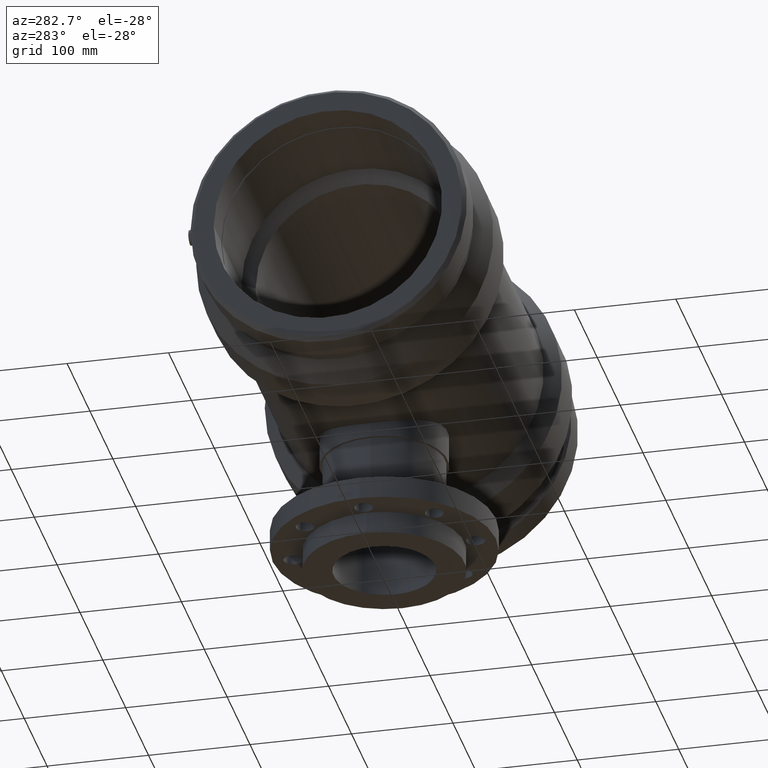
[diagram: clean part render]
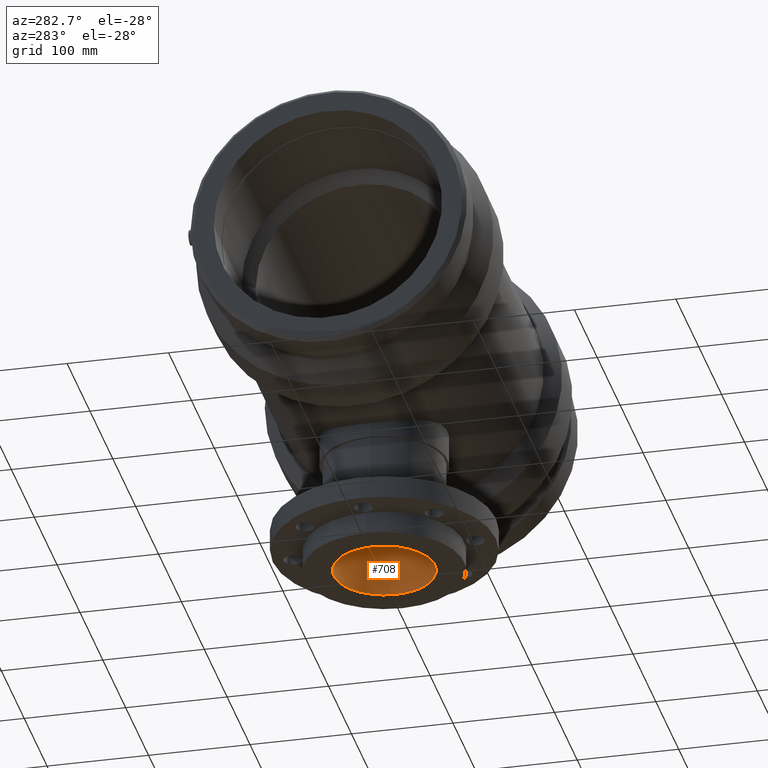
[diagram: same view with one face highlighted and labeled with its STEP entity id]
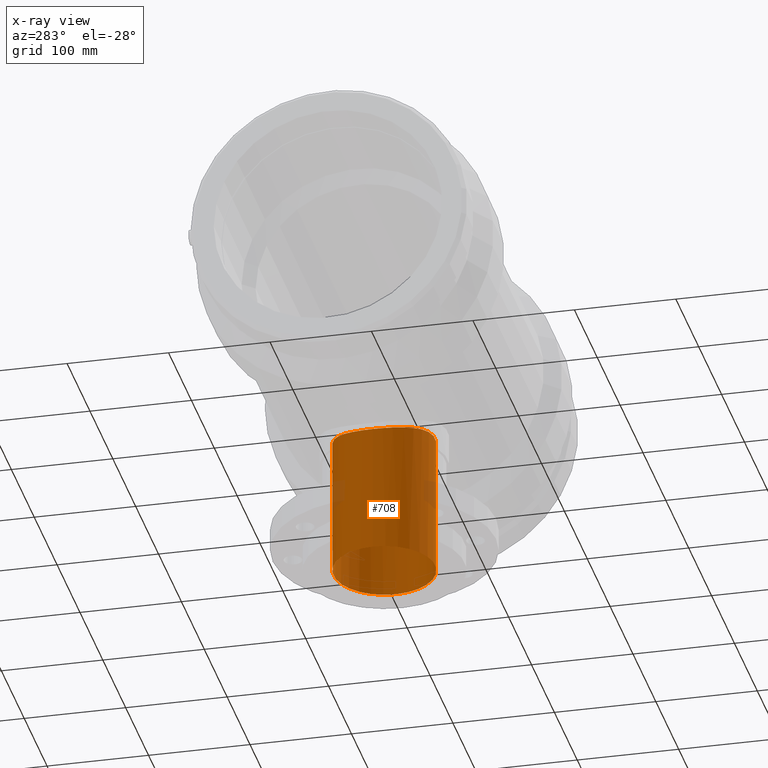
[diagram: x-ray of the same camera — body ghosted, the highlighted face saturated]
A machine part, auxiliary view. The second image highlights one B-rep face of the part: STEP entity #708.
The next image is the same camera in x-ray: the body ghosted, the highlighted face saturated — about 4% of this face is hidden behind the body in this view.
In plain terms, the highlighted cylindrical surface (bore or boss wall) has radius 50 mm, axis along (-0, 0, -1).
Its self-contained STEP definition (entity closure, byte-faithful):
#52=FACE_BOUND('',#293,.T.);
#137=CIRCLE('',#786,50.);
#193=CYLINDRICAL_SURFACE('',#785,50.);
#224=FACE_OUTER_BOUND('',#292,.T.);
#292=EDGE_LOOP('',(#578));
#293=EDGE_LOOP('',(#579));
#414=B_SPLINE_CURVE_WITH_KNOTS('',3,(#1267,#1268,#1269,#1270,#1271,#1272,
#1273,#1274,#1275,#1276,#1277,#1278,#1279,#1280,#1281,#1282,#1283,#1284,
#1285,#1286,#1287,#1288,#1289,#1290,#1291,#1292,#1293,#1294,#1295,#1296,
#1297,#1298,#1299,#1300,#1301,#1302,#1303,#1304,#1305,#1306,#1307,#1308,
#1309,#1310,#1311,#1312,#1313,#1314,#1315,#1316,#1317,#1318,#1319,#1320,
#1321,#1322,#1323,#1324,#1325,#1326,#1327,#1328,#1329,#1330,#1331,#1332,
#1333,#1334,#1335,#1336,#1337,#1338,#1339,#1340,#1341,#1342,#1343,#1344,
#1345,#1346,#1347,#1348,#1349,#1350,#1351,#1352,#1353,#1354,#1355,#1356,
#1357,#1358,#1359,#1360,#1361,#1362,#1363),.UNSPECIFIED.,.T.,.F.,(4,3,3,
3,3,3,3,3,3,3,3,3,3,3,3,3,3,3,3,3,3,3,3,3,3,3,3,3,3,3,3,3,4),(0.,0.95251709875408,
1.90503419750816,2.85755129626224,3.81006839501632,4.76182017603819,5.71357195706005,
6.66532373808192,7.61707551910378,8.56882730012565,9.52057908114751,10.4723308621694,
11.4240826431912,12.3765997419453,13.3291168406994,14.2816339394535,15.2341510382076,
16.1866681369617,17.1391852357157,18.0917023344698,19.0442194332239,19.9959712142458,
20.9477229952676,21.8994747762895,22.8512265573114,23.8029783383332,24.7547301193551,
25.706481900377,26.6582336813988,27.6107507801529,28.563267878907,29.5157849776611,
30.4683020764151),.UNSPECIFIED.);
#419=VERTEX_POINT('',#1266);
#437=VERTEX_POINT('',#1445);
#488=EDGE_CURVE('',#419,#419,#414,.T.);
#507=EDGE_CURVE('',#437,#437,#137,.T.);
#578=ORIENTED_EDGE('',*,*,#507,.T.);
#579=ORIENTED_EDGE('',*,*,#488,.F.);
#708=ADVANCED_FACE('',(#224,#52),#193,.F.);
#785=AXIS2_PLACEMENT_3D('',#1444,#935,#936);
#786=AXIS2_PLACEMENT_3D('',#1446,#937,#938);
#935=DIRECTION('center_axis',(-1.22464679914735E-16,0.,-1.));
#936=DIRECTION('ref_axis',(-1.,0.,0.));
#937=DIRECTION('center_axis',(-1.22464679914735E-16,0.,-1.));
#938=DIRECTION('ref_axis',(1.,0.,-1.22464679914735E-16));
#1266=CARTESIAN_POINT('',(-1.38777878078145E-14,50.,-122.001731545089));
#1267=CARTESIAN_POINT('Ctrl Pts',(-1.4432899320127E-14,50.,-122.001731545089));
#1268=CARTESIAN_POINT('Ctrl Pts',(3.17505699584692,50.,-122.001731545089));
#1269=CARTESIAN_POINT('Ctrl Pts',(6.44691543442162,49.6927181165178,-122.129163967763));
#1270=CARTESIAN_POINT('Ctrl Pts',(9.69013407718668,49.0520264776711,-122.385951801805));
#1271=CARTESIAN_POINT('Ctrl Pts',(12.9333527199517,48.4113348388244,-122.642739635848));
#1272=CARTESIAN_POINT('Ctrl Pts',(16.1480579027653,47.4376363748977,-123.028293102024));
#1273=CARTESIAN_POINT('Ctrl Pts',(19.2221926332275,46.157418801007,-123.506741474418));
#1274=CARTESIAN_POINT('Ctrl Pts',(22.2963273636898,44.8772012271162,-123.985189846813));
#1275=CARTESIAN_POINT('Ctrl Pts',(25.2353937388541,43.2884344589753,-124.556207896686));
#1276=CARTESIAN_POINT('Ctrl Pts',(27.9494274381145,41.458768745364,-125.162266654605));
#1277=CARTESIAN_POINT('Ctrl Pts',(30.6634611373748,39.6291030317528,-125.768325412524));
#1278=CARTESIAN_POINT('Ctrl Pts',(33.152495195,37.5581829236547,-126.408203299112));
#1279=CARTESIAN_POINT('Ctrl Pts',(35.3553390593273,35.3553390593274,-127.021346631186));
#1280=CARTESIAN_POINT('Ctrl Pts',(37.5564130074265,33.1542651112282,-127.633997321748));
#1281=CARTESIAN_POINT('Ctrl Pts',(39.6271114773203,30.6660773106576,-128.264289976873));
#1282=CARTESIAN_POINT('Ctrl Pts',(41.4571563197367,27.9518190799975,-128.853088089184));
#1283=CARTESIAN_POINT('Ctrl Pts',(43.2872011621532,25.2375608493373,-129.441886201496));
#1284=CARTESIAN_POINT('Ctrl Pts',(44.8768716490696,22.2971967352341,-129.988158086335));
#1285=CARTESIAN_POINT('Ctrl Pts',(46.1576010451734,19.2217550123451,-130.441353236791));
#1286=CARTESIAN_POINT('Ctrl Pts',(47.4383304412771,16.1463132894562,-130.894548387248));
#1287=CARTESIAN_POINT('Ctrl Pts',(48.4121539134414,12.9303299289489,-131.254736994205));
#1288=CARTESIAN_POINT('Ctrl Pts',(49.0526648466482,9.68690205599323,-131.493674481161));
#1289=CARTESIAN_POINT('Ctrl Pts',(49.6931757798549,6.4434741830376,-131.732611968118));
#1290=CARTESIAN_POINT('Ctrl Pts',(50.,3.17250593673956,-131.85));
#1291=CARTESIAN_POINT('Ctrl Pts',(50.,6.93889390390723E-15,-131.85));
#1292=CARTESIAN_POINT('Ctrl Pts',(50.,-3.17250593673954,-131.85));
#1293=CARTESIAN_POINT('Ctrl Pts',(49.6931757798549,-6.44347418303759,-131.732611968118));
#1294=CARTESIAN_POINT('Ctrl Pts',(49.0526648466482,-9.68690205599322,-131.493674481161));
#1295=CARTESIAN_POINT('Ctrl Pts',(48.4121539134414,-12.9303299289488,-131.254736994205));
#1296=CARTESIAN_POINT('Ctrl Pts',(47.4383304412771,-16.1463132894562,-130.894548387248));
#1297=CARTESIAN_POINT('Ctrl Pts',(46.1576010451734,-19.2217550123451,-130.441353236791));
#1298=CARTESIAN_POINT('Ctrl Pts',(44.8768716490697,-22.2971967352341,-129.988158086335));
#1299=CARTESIAN_POINT('Ctrl Pts',(43.2872011621532,-25.2375608493373,-129.441886201496));
#1300=CARTESIAN_POINT('Ctrl Pts',(41.4571563197367,-27.9518190799975,-128.853088089184));
#1301=CARTESIAN_POINT('Ctrl Pts',(39.6271114773203,-30.6660773106576,-128.264289976873));
#1302=CARTESIAN_POINT('Ctrl Pts',(37.5564130074265,-33.1542651112282,-127.633997321748));
#1303=CARTESIAN_POINT('Ctrl Pts',(35.3553390593274,-35.3553390593274,-127.021346631186));
#1304=CARTESIAN_POINT('Ctrl Pts',(33.1524951950001,-37.5581829236547,-126.408203299112));
#1305=CARTESIAN_POINT('Ctrl Pts',(30.6634611373748,-39.6291030317528,-125.768325412524));
#1306=CARTESIAN_POINT('Ctrl Pts',(27.9494274381144,-41.458768745364,-125.162266654605));
#1307=CARTESIAN_POINT('Ctrl Pts',(25.2353937388541,-43.2884344589753,-124.556207896686));
#1308=CARTESIAN_POINT('Ctrl Pts',(22.2963273636898,-44.8772012271162,-123.985189846813));
#1309=CARTESIAN_POINT('Ctrl Pts',(19.2221926332275,-46.157418801007,-123.506741474418));
#1310=CARTESIAN_POINT('Ctrl Pts',(16.1480579027653,-47.4376363748977,-123.028293102024));
#1311=CARTESIAN_POINT('Ctrl Pts',(12.9333527199517,-48.4113348388244,-122.642739635848));
#1312=CARTESIAN_POINT('Ctrl Pts',(9.69013407718668,-49.0520264776711,-122.385951801805));
#1313=CARTESIAN_POINT('Ctrl Pts',(6.44691543442162,-49.6927181165178,-122.129163967763));
#1314=CARTESIAN_POINT('Ctrl Pts',(3.17505699584691,-50.,-122.001731545089));
#1315=CARTESIAN_POINT('Ctrl Pts',(-1.50267886680737E-14,-50.,-122.001731545089));
#1316=CARTESIAN_POINT('Ctrl Pts',(-3.17505699584698,-50.,-122.001731545089));
#1317=CARTESIAN_POINT('Ctrl Pts',(-6.44691543442167,-49.6927181165178,-122.129163967763));
#1318=CARTESIAN_POINT('Ctrl Pts',(-9.69013407718673,-49.0520264776711,-122.385951801805));
#1319=CARTESIAN_POINT('Ctrl Pts',(-12.9333527199518,-48.4113348388244,-122.642739635848));
#1320=CARTESIAN_POINT('Ctrl Pts',(-16.1480579027654,-47.4376363748977,-123.028293102024));
#1321=CARTESIAN_POINT('Ctrl Pts',(-19.2221926332276,-46.157418801007,-123.506741474418));
#1322=CARTESIAN_POINT('Ctrl Pts',(-22.2963273636898,-44.8772012271162,-123.985189846813));
#1323=CARTESIAN_POINT('Ctrl Pts',(-25.2353937388541,-43.2884344589753,-124.556207896686));
#1324=CARTESIAN_POINT('Ctrl Pts',(-27.9494274381145,-41.458768745364,-125.162266654605));
#1325=CARTESIAN_POINT('Ctrl Pts',(-30.6634611373748,-39.6291030317528,-125.768325412524));
#1326=CARTESIAN_POINT('Ctrl Pts',(-33.1524951950001,-37.5581829236547,-126.408203299112));
#1327=CARTESIAN_POINT('Ctrl Pts',(-35.3553390593274,-35.3553390593274,-127.021346631186));
#1328=CARTESIAN_POINT('Ctrl Pts',(-37.5564130074265,-33.1542651112282,-127.633997321748));
#1329=CARTESIAN_POINT('Ctrl Pts',(-39.6271114773203,-30.6660773106576,-128.264289976873));
#1330=CARTESIAN_POINT('Ctrl Pts',(-41.4571563197368,-27.9518190799975,-128.853088089184));
#1331=CARTESIAN_POINT('Ctrl Pts',(-43.2872011621532,-25.2375608493373,-129.441886201496));
#1332=CARTESIAN_POINT('Ctrl Pts',(-44.8768716490697,-22.2971967352341,-129.988158086335));
#1333=CARTESIAN_POINT('Ctrl Pts',(-46.1576010451734,-19.2217550123451,-130.441353236791));
#1334=CARTESIAN_POINT('Ctrl Pts',(-47.4383304412772,-16.1463132894562,-130.894548387248));
#1335=CARTESIAN_POINT('Ctrl Pts',(-48.4121539134414,-12.9303299289489,-131.254736994205));
#1336=CARTESIAN_POINT('Ctrl Pts',(-49.0526648466482,-9.68690205599324,-131.493674481161));
#1337=CARTESIAN_POINT('Ctrl Pts',(-49.693175779855,-6.44347418303761,-131.732611968118));
#1338=CARTESIAN_POINT('Ctrl Pts',(-50.,-3.17250593673955,-131.85));
#1339=CARTESIAN_POINT('Ctrl Pts',(-50.,-1.36002320516582E-14,-131.85));
#1340=CARTESIAN_POINT('Ctrl Pts',(-50.,3.17250593673953,-131.85));
#1341=CARTESIAN_POINT('Ctrl Pts',(-49.6931757798549,6.44347418303758,-131.732611968118));
#1342=CARTESIAN_POINT('Ctrl Pts',(-49.0526648466482,9.68690205599321,-131.493674481161));
#1343=CARTESIAN_POINT('Ctrl Pts',(-48.4121539134415,12.9303299289488,-131.254736994205));
#1344=CARTESIAN_POINT('Ctrl Pts',(-47.4383304412772,16.1463132894561,-130.894548387248));
#1345=CARTESIAN_POINT('Ctrl Pts',(-46.1576010451734,19.2217550123451,-130.441353236791));
#1346=CARTESIAN_POINT('Ctrl Pts',(-44.8768716490697,22.2971967352341,-129.988158086335));
#1347=CARTESIAN_POINT('Ctrl Pts',(-43.2872011621532,25.2375608493373,-129.441886201496));
#1348=CARTESIAN_POINT('Ctrl Pts',(-41.4571563197368,27.9518190799975,-128.853088089184));
#1349=CARTESIAN_POINT('Ctrl Pts',(-39.6271114773203,30.6660773106576,-128.264289976873));
#1350=CARTESIAN_POINT('Ctrl Pts',(-37.5564130074266,33.1542651112282,-127.633997321748));
#1351=CARTESIAN_POINT('Ctrl Pts',(-35.3553390593274,35.3553390593274,-127.021346631186));
#1352=CARTESIAN_POINT('Ctrl Pts',(-33.1524951950001,37.5581829236547,-126.408203299112));
#1353=CARTESIAN_POINT('Ctrl Pts',(-30.6634611373748,39.6291030317528,-125.768325412524));
#1354=CARTESIAN_POINT('Ctrl Pts',(-27.9494274381145,41.458768745364,-125.162266654605));
#1355=CARTESIAN_POINT('Ctrl Pts',(-25.2353937388541,43.2884344589753,-124.556207896686));
#1356=CARTESIAN_POINT('Ctrl Pts',(-22.2963273636898,44.8772012271162,-123.985189846813));
#1357=CARTESIAN_POINT('Ctrl Pts',(-19.2221926332276,46.1574188010069,-123.506741474418));
#1358=CARTESIAN_POINT('Ctrl Pts',(-16.1480579027654,47.4376363748977,-123.028293102024));
#1359=CARTESIAN_POINT('Ctrl Pts',(-12.9333527199518,48.4113348388244,-122.642739635848));
#1360=CARTESIAN_POINT('Ctrl Pts',(-9.69013407718673,49.0520264776711,-122.385951801806));
#1361=CARTESIAN_POINT('Ctrl Pts',(-6.44691543442165,49.6927181165178,-122.129163967763));
#1362=CARTESIAN_POINT('Ctrl Pts',(-3.17505699584694,50.,-122.001731545089));
#1363=CARTESIAN_POINT('Ctrl Pts',(-1.49409030027128E-14,50.,-122.001731545089));
#1444=CARTESIAN_POINT('Origin',(-1.59204083889156E-14,0.,-130.));
#1445=CARTESIAN_POINT('',(-50.,0.,-260.));
#1446=CARTESIAN_POINT('Origin',(-3.18408167778312E-14,0.,-260.));